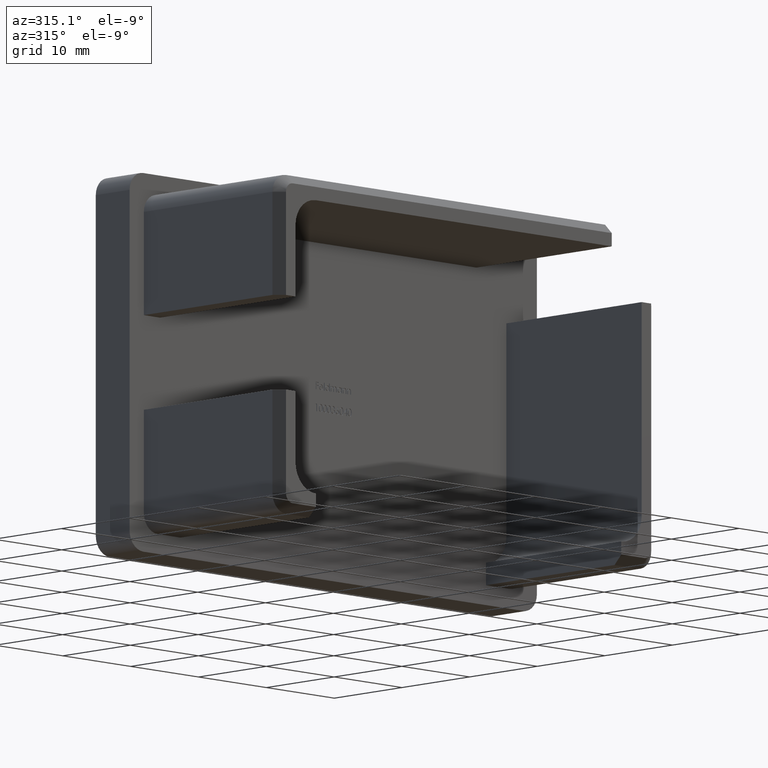
[diagram: clean part render]
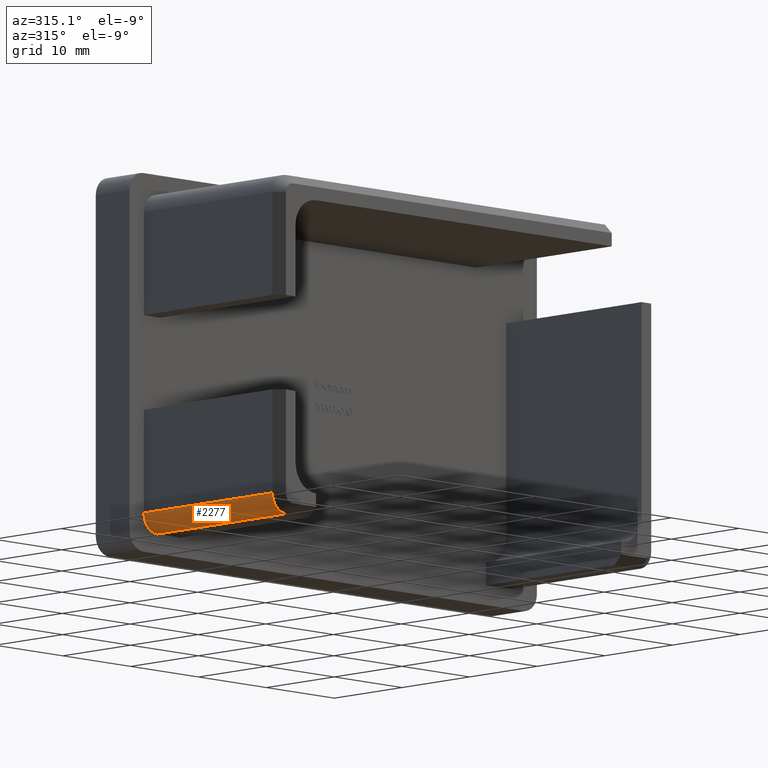
[diagram: same view with one face highlighted and labeled with its STEP entity id]
A machine part, auxiliary view. The second image highlights one B-rep face of the part: STEP entity #2277.
In plain terms, the highlighted cylindrical surface (edge-blend (fillet) strip) has radius 2 mm, axis along (0, 1, 0).
Its self-contained STEP definition (entity closure, byte-faithful):
#248 = CARTESIAN_POINT ( 'NONE',  ( -25.89999999999999900, 0.0000000000000000000, -17.90000000000000600 ) ) ;
#850 = DIRECTION ( 'NONE',  ( 0.0000000000000000000, 0.0000000000000000000, 1.000000000000000000 ) ) ;
#1094 = CARTESIAN_POINT ( 'NONE',  ( -27.90000000000000200, 0.0000000000000000000, -15.90000000000000400 ) ) ;
#1344 = VECTOR ( 'NONE', #4363, 1000.000000000000000 ) ;
#1761 = DIRECTION ( 'NONE',  ( 0.0000000000000000000, 1.000000000000000000, 0.0000000000000000000 ) ) ;
#2260 = DIRECTION ( 'NONE',  ( 0.0000000000000000000, 1.000000000000000000, 0.0000000000000000000 ) ) ;
#2277 = ADVANCED_FACE ( 'NONE', ( #11460 ), #9617, .T. ) ;
#2373 = AXIS2_PLACEMENT_3D ( 'NONE', #11112, #1761, #11071 ) ;
#2814 = VERTEX_POINT ( 'NONE', #1094 ) ;
#3337 = CARTESIAN_POINT ( 'NONE',  ( -25.89999999999999900, -20.00000000000000000, -15.90000000000000400 ) ) ;
#3358 = CIRCLE ( 'NONE', #9658, 2.000000000000001800 ) ;
#3421 = VERTEX_POINT ( 'NONE', #8329 ) ;
#3787 = CARTESIAN_POINT ( 'NONE',  ( -27.90000000000000200, -18.99999999999999600, -15.90000000000000400 ) ) ;
#4201 = DIRECTION ( 'NONE',  ( 0.0000000000000000000, 1.000000000000000000, 0.0000000000000000000 ) ) ;
#4363 = DIRECTION ( 'NONE',  ( -0.0000000000000000000, -1.000000000000000000, -0.0000000000000000000 ) ) ;
#5433 = EDGE_CURVE ( 'NONE', #2814, #10810, #8479, .T. ) ;
#6735 = CIRCLE ( 'NONE', #2373, 2.000000000000000000 ) ;
#7688 = EDGE_LOOP ( 'NONE', ( #12684, #9924, #7724, #13559 ) ) ;
#7724 = ORIENTED_EDGE ( 'NONE', *, *, #5433, .F. ) ;
#8329 = CARTESIAN_POINT ( 'NONE',  ( -25.89999999999999900, -18.99999999999999600, -17.90000000000000600 ) ) ;
#8479 = LINE ( 'NONE', #15130, #1344 ) ;
#8639 = VECTOR ( 'NONE', #4201, 1000.000000000000000 ) ;
#8864 = CARTESIAN_POINT ( 'NONE',  ( -25.89999999999999900, -20.00000000000000000, -17.90000000000000600 ) ) ;
#9040 = EDGE_CURVE ( 'NONE', #3421, #10810, #3358, .T. ) ;
#9120 = DIRECTION ( 'NONE',  ( 0.0000000000000000000, 0.0000000000000000000, -1.000000000000000000 ) ) ;
#9176 = AXIS2_PLACEMENT_3D ( 'NONE', #3337, #10313, #850 ) ;
#9617 = CYLINDRICAL_SURFACE ( 'NONE', #9176, 2.000000000000000000 ) ;
#9658 = AXIS2_PLACEMENT_3D ( 'NONE', #12666, #2260, #9120 ) ;
#9924 = ORIENTED_EDGE ( 'NONE', *, *, #9040, .T. ) ;
#10116 = EDGE_CURVE ( 'NONE', #11688, #2814, #6735, .T. ) ;
#10313 = DIRECTION ( 'NONE',  ( 0.0000000000000000000, 1.000000000000000000, 0.0000000000000000000 ) ) ;
#10810 = VERTEX_POINT ( 'NONE', #3787 ) ;
#10829 = LINE ( 'NONE', #8864, #8639 ) ;
#11071 = DIRECTION ( 'NONE',  ( 0.0000000000000000000, 0.0000000000000000000, 1.000000000000000000 ) ) ;
#11112 = CARTESIAN_POINT ( 'NONE',  ( -25.89999999999999900, 0.0000000000000000000, -15.90000000000000400 ) ) ;
#11460 = FACE_OUTER_BOUND ( 'NONE', #7688, .T. ) ;
#11688 = VERTEX_POINT ( 'NONE', #248 ) ;
#12666 = CARTESIAN_POINT ( 'NONE',  ( -25.89999999999999900, -18.99999999999999600, -15.90000000000000400 ) ) ;
#12684 = ORIENTED_EDGE ( 'NONE', *, *, #14208, .F. ) ;
#13559 = ORIENTED_EDGE ( 'NONE', *, *, #10116, .F. ) ;
#14208 = EDGE_CURVE ( 'NONE', #3421, #11688, #10829, .T. ) ;
#15130 = CARTESIAN_POINT ( 'NONE',  ( -27.90000000000000200, -20.00000000000000000, -15.90000000000000400 ) ) ;